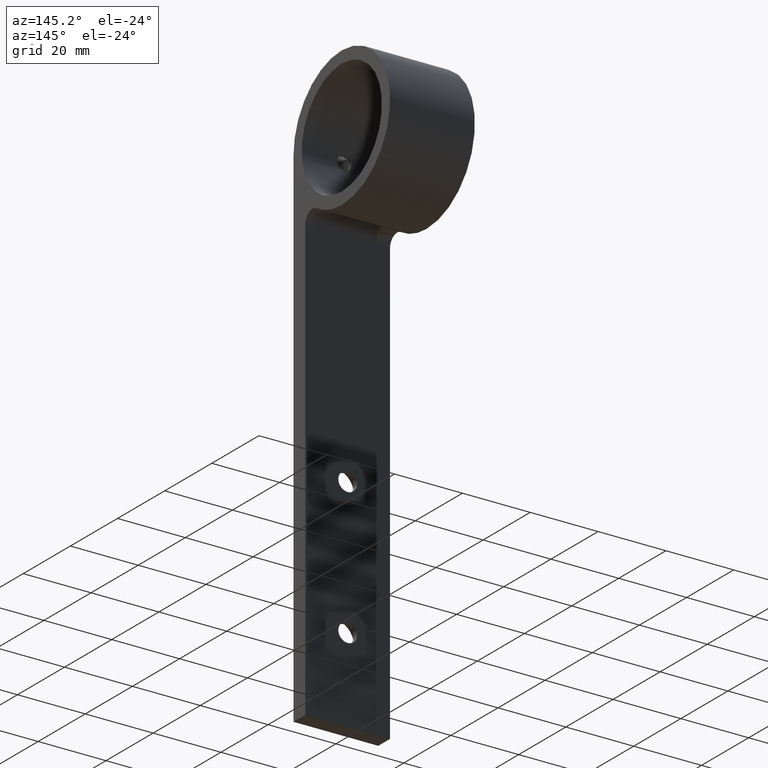
[diagram: clean part render]
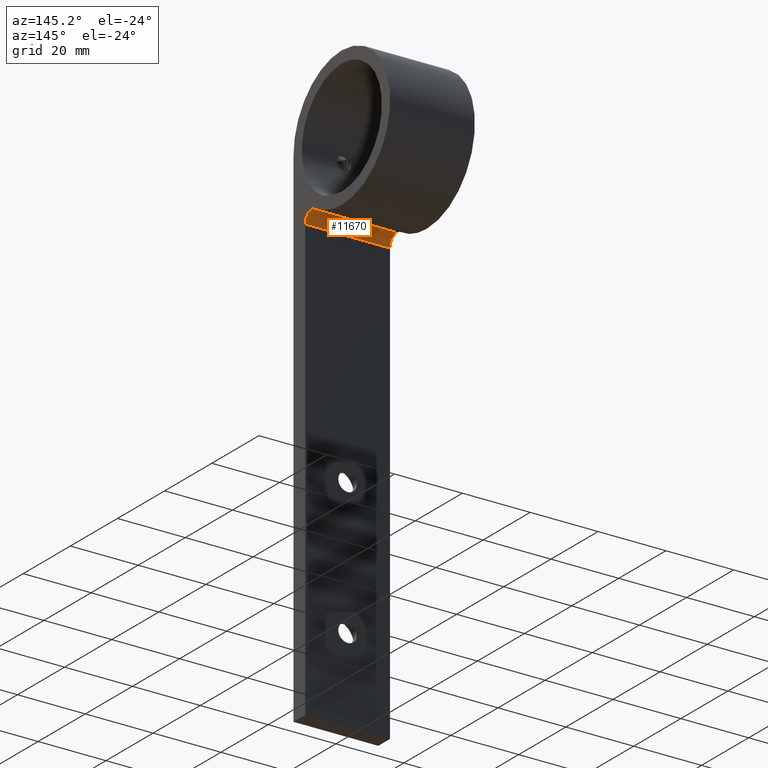
[diagram: same view with one face highlighted and labeled with its STEP entity id]
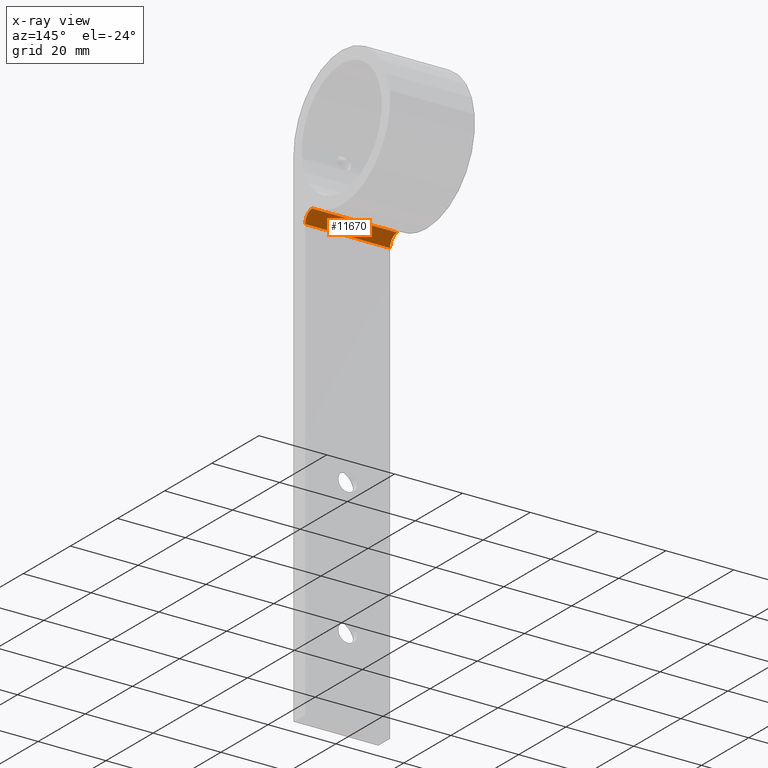
[diagram: x-ray of the same camera — body ghosted, the highlighted face saturated]
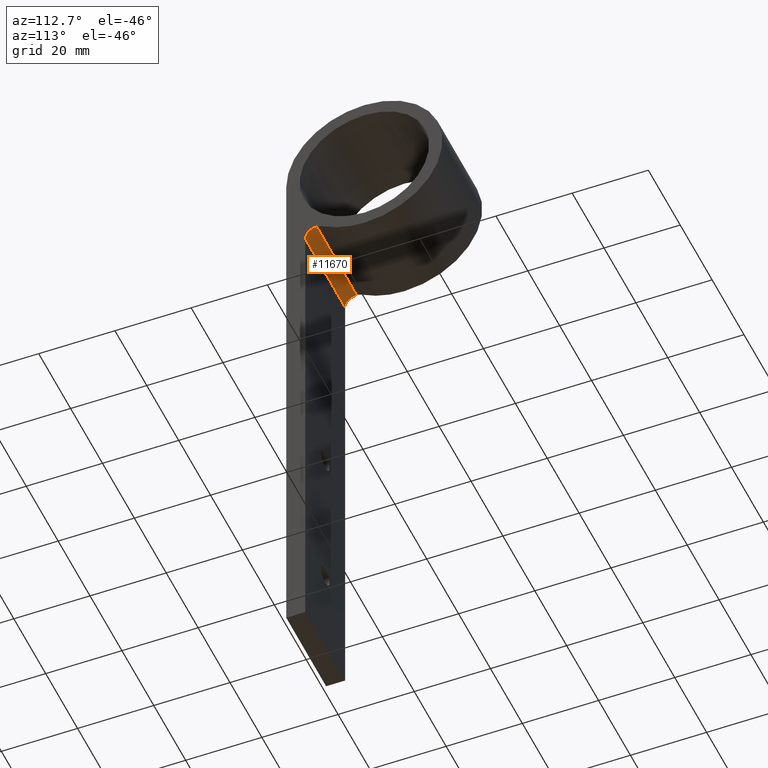
[diagram: same view with one face highlighted and labeled with its STEP entity id]
A machine part, auxiliary view. The second image highlights one B-rep face of the part: STEP entity #11670.
The next image is the same camera in x-ray: the body ghosted, the highlighted face saturated — about 0% of this face is hidden behind the body in this view.
A second angle (auxiliary view) of the same face is appended — the face is thin or edge-on in the first view.
In plain terms, the highlighted cylindrical surface (edge-blend (fillet) strip) has radius 3 mm, axis along (-1, -0, -0).
Its self-contained STEP definition (entity closure, byte-faithful):
#107 = VERTEX_POINT ( 'NONE', #3133 ) ;
#151 = VERTEX_POINT ( 'NONE', #3268 ) ;
#177 = DIRECTION ( 'NONE',  ( 1.000000000000000000, 0.0000000000000000000, 0.0000000000000000000 ) ) ;
#200 = CARTESIAN_POINT ( 'NONE',  ( 12.50000000000000000, 7.999999999999983100, -19.89974874213238500 ) ) ;
#460 = LINE ( 'NONE', #6053, #1734 ) ;
#917 = ORIENTED_EDGE ( 'NONE', *, *, #9906, .F. ) ;
#1020 = FACE_OUTER_BOUND ( 'NONE', #8222, .T. ) ;
#1257 = CIRCLE ( 'NONE', #11541, 2.999999999999999100 ) ;
#1567 = DIRECTION ( 'NONE',  ( 0.0000000000000000000, 0.0000000000000000000, 1.000000000000000000 ) ) ;
#1734 = VECTOR ( 'NONE', #6009, 1000.000000000000000 ) ;
#2522 = DIRECTION ( 'NONE',  ( -1.000000000000000000, -0.0000000000000000000, -0.0000000000000000000 ) ) ;
#3133 = CARTESIAN_POINT ( 'NONE',  ( 12.50000000000000000, 7.999999999999983100, -16.89974874213238500 ) ) ;
#3268 = CARTESIAN_POINT ( 'NONE',  ( -12.50000000000000000, 4.999999999999983100, -19.89974874213237800 ) ) ;
#3413 = DIRECTION ( 'NONE',  ( -1.000000000000000000, -0.0000000000000000000, -0.0000000000000000000 ) ) ;
#4005 = ORIENTED_EDGE ( 'NONE', *, *, #11494, .F. ) ;
#4167 = CARTESIAN_POINT ( 'NONE',  ( 12.50000000000000000, 4.999999999999983100, -19.89974874213238500 ) ) ;
#4390 = EDGE_CURVE ( 'NONE', #107, #5531, #460, .T. ) ;
#4479 = CIRCLE ( 'NONE', #9633, 2.999999999999999100 ) ;
#4752 = ORIENTED_EDGE ( 'NONE', *, *, #4390, .F. ) ;
#4908 = CYLINDRICAL_SURFACE ( 'NONE', #12469, 2.999999999999999100 ) ;
#5531 = VERTEX_POINT ( 'NONE', #7123 ) ;
#6009 = DIRECTION ( 'NONE',  ( -1.000000000000000000, -0.0000000000000000000, -0.0000000000000000000 ) ) ;
#6053 = CARTESIAN_POINT ( 'NONE',  ( 12.50000000000000000, 7.999999999999983100, -16.89974874213238500 ) ) ;
#6155 = EDGE_CURVE ( 'NONE', #5531, #151, #1257, .T. ) ;
#6337 = DIRECTION ( 'NONE',  ( 0.0000000000000000000, 0.0000000000000000000, -1.000000000000000000 ) ) ;
#7123 = CARTESIAN_POINT ( 'NONE',  ( -12.50000000000000000, 7.999999999999983100, -16.89974874213238500 ) ) ;
#7551 = CARTESIAN_POINT ( 'NONE',  ( 12.50000000000000000, 7.999999999999983100, -19.89974874213238500 ) ) ;
#8222 = EDGE_LOOP ( 'NONE', ( #4752, #917, #4005, #12768 ) ) ;
#8306 = LINE ( 'NONE', #4167, #10451 ) ;
#9495 = DIRECTION ( 'NONE',  ( 0.0000000000000000000, 0.0000000000000000000, -1.000000000000000000 ) ) ;
#9633 = AXIS2_PLACEMENT_3D ( 'NONE', #200, #3413, #9495 ) ;
#9906 = EDGE_CURVE ( 'NONE', #11404, #107, #4479, .T. ) ;
#10451 = VECTOR ( 'NONE', #177, 1000.000000000000000 ) ;
#11305 = CARTESIAN_POINT ( 'NONE',  ( -12.50000000000000000, 7.999999999999983100, -19.89974874213238500 ) ) ;
#11404 = VERTEX_POINT ( 'NONE', #12884 ) ;
#11494 = EDGE_CURVE ( 'NONE', #151, #11404, #8306, .T. ) ;
#11541 = AXIS2_PLACEMENT_3D ( 'NONE', #11305, #12302, #6337 ) ;
#11670 = ADVANCED_FACE ( 'NONE', ( #1020 ), #4908, .F. ) ;
#12302 = DIRECTION ( 'NONE',  ( 1.000000000000000000, 0.0000000000000000000, 0.0000000000000000000 ) ) ;
#12469 = AXIS2_PLACEMENT_3D ( 'NONE', #7551, #2522, #1567 ) ;
#12768 = ORIENTED_EDGE ( 'NONE', *, *, #6155, .F. ) ;
#12884 = CARTESIAN_POINT ( 'NONE',  ( 12.50000000000000000, 4.999999999999983100, -19.89974874213237800 ) ) ;